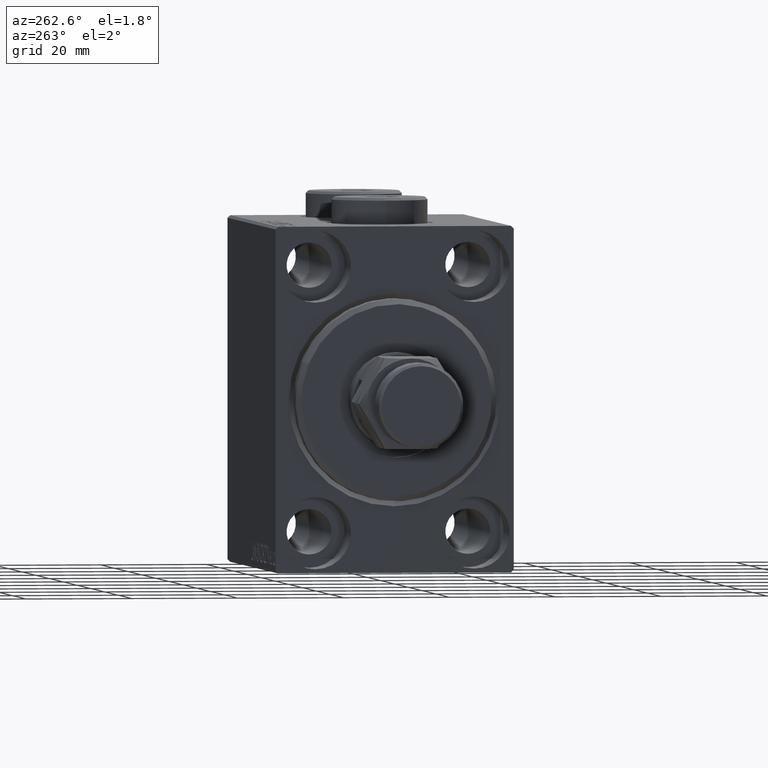
[diagram: clean part render]
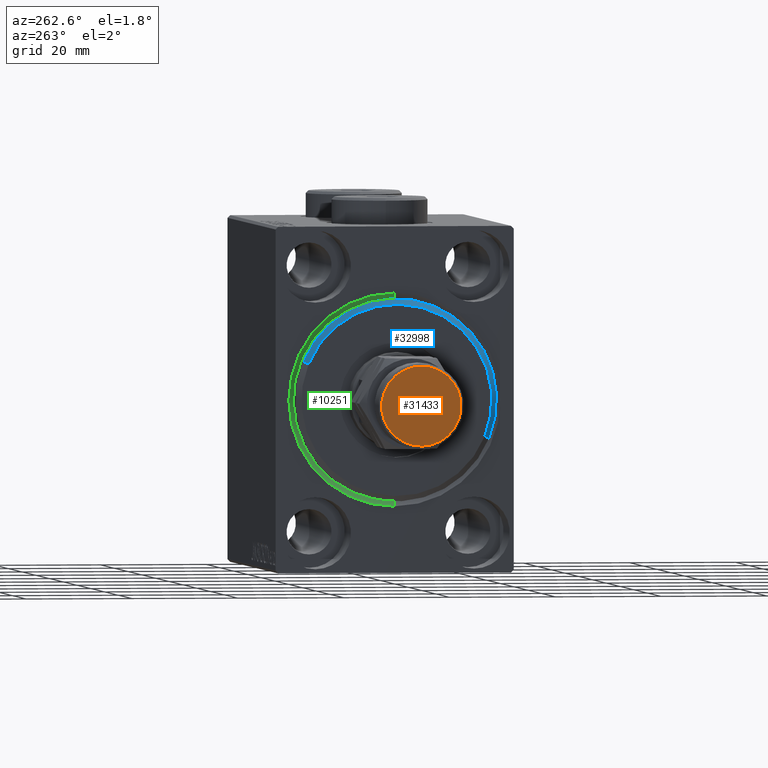
[diagram: same view with three faces highlighted in distinct colors, each labeled with its STEP entity id]
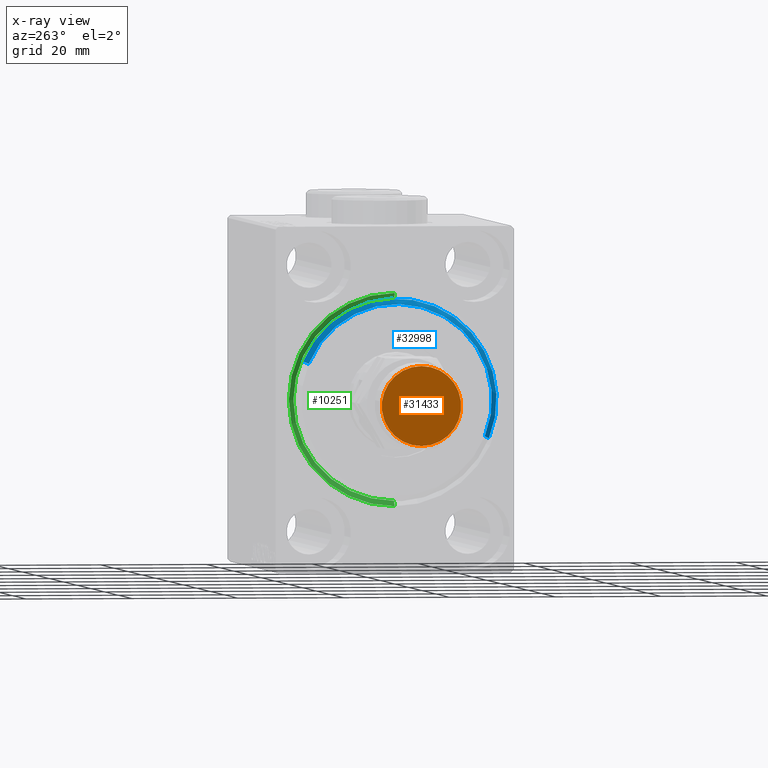
[diagram: x-ray of the same camera — body ghosted, the three highlighted faces saturated]
A machine part, auxiliary view with three faces highlighted in distinct colors.
The next image is the same camera in x-ray (body ghosted, the three faces saturated) — at least one of them is partly hidden behind the body in this view.
Their STEP definitions:

[orange] entity #31433 — the highlighted planar face has unit normal (-1, 0, 0).
#1427 = FACE_OUTER_BOUND ( 'NONE', #40036, .T. ) ;
#3034 = DIRECTION ( 'NONE',  ( 0.000000000000000000, 0.000000000000000000, 1.000000000000000000 ) ) ;
#3416 = ORIENTED_EDGE ( 'NONE', *, *, #18164, .T. ) ;
#3984 = CARTESIAN_POINT ( 'NONE',  ( 7.500000000000000000, 9.491012693391985815E-16, 28.00000000000000000 ) ) ;
#4014 = CIRCLE ( 'NONE', #7059, 7.500000000000000000 ) ;
#5772 = EDGE_CURVE ( 'NONE', #34892, #43470, #32545, .T. ) ;
#7059 = AXIS2_PLACEMENT_3D ( 'NONE', #11611, #44065, #24137 ) ;
#8395 = CARTESIAN_POINT ( 'NONE',  ( -7.500000000000000000, 0.000000000000000000, 28.00000000000000000 ) ) ;
#11611 = CARTESIAN_POINT ( 'NONE',  ( 0.000000000000000000, 0.000000000000000000, 28.00000000000000000 ) ) ;
#18164 = EDGE_CURVE ( 'NONE', #43470, #34892, #4014, .T. ) ;
#18190 = CARTESIAN_POINT ( 'NONE',  ( 0.000000000000000000, 0.000000000000000000, 28.00000000000000000 ) ) ;
#24137 = DIRECTION ( 'NONE',  ( 1.000000000000000000, 0.000000000000000000, 0.000000000000000000 ) ) ;
#28852 = DIRECTION ( 'NONE',  ( 1.000000000000000000, 0.000000000000000000, 0.000000000000000000 ) ) ;
#29057 = ORIENTED_EDGE ( 'NONE', *, *, #5772, .T. ) ;
#30240 = AXIS2_PLACEMENT_3D ( 'NONE', #18190, #3034, #28852 ) ;
#31433 = ADVANCED_FACE ( 'NONE', ( #1427 ), #37678, .T. ) ;
#32545 = CIRCLE ( 'NONE', #30240, 7.500000000000000000 ) ;
#33896 = CARTESIAN_POINT ( 'NONE',  ( 0.000000000000000000, 0.000000000000000000, 28.00000000000000000 ) ) ;
#34558 = AXIS2_PLACEMENT_3D ( 'NONE', #33896, #37903, #34587 ) ;
#34587 = DIRECTION ( 'NONE',  ( 1.000000000000000000, 0.000000000000000000, -0.000000000000000000 ) ) ;
#34892 = VERTEX_POINT ( 'NONE', #8395 ) ;
#37678 = PLANE ( 'NONE',  #34558 ) ;
#37903 = DIRECTION ( 'NONE',  ( 0.000000000000000000, 0.000000000000000000, 1.000000000000000000 ) ) ;
#40036 = EDGE_LOOP ( 'NONE', ( #29057, #3416 ) ) ;
#43470 = VERTEX_POINT ( 'NONE', #3984 ) ;
#44065 = DIRECTION ( 'NONE',  ( 0.000000000000000000, 0.000000000000000000, 1.000000000000000000 ) ) ;

[blue] entity #32998 — the highlighted conical surface has half-angle 45 deg.
#628 = LINE ( 'NONE', #25981, #39481 ) ;
#1464 = CIRCLE ( 'NONE', #34007, 17.99999999999999645 ) ;
#1726 = EDGE_LOOP ( 'NONE', ( #16423, #27873, #13181, #31493 ) ) ;
#3560 = EDGE_CURVE ( 'NONE', #18769, #9511, #1464, .T. ) ;
#3833 = CARTESIAN_POINT ( 'NONE',  ( 3.000000000000000000, 0.000000000000000000, 0.000000000000000000 ) ) ;
#4157 = CARTESIAN_POINT ( 'NONE',  ( 3.000000000000000000, 2.265596578422603002E-15, -17.99999999999999645 ) ) ;
#4874 = DIRECTION ( 'NONE',  ( -0.7071067811865487940, 0.000000000000000000, 0.7071067811865463515 ) ) ;
#5078 = EDGE_CURVE ( 'NONE', #18086, #35740, #35549, .T. ) ;
#6585 = LINE ( 'NONE', #24345, #21733 ) ;
#7521 = CARTESIAN_POINT ( 'NONE',  ( 3.000000000000000000, 0.000000000000000000, 0.000000000000000000 ) ) ;
#9511 = VERTEX_POINT ( 'NONE', #4157 ) ;
#10478 = DIRECTION ( 'NONE',  ( -1.000000000000000000, 0.000000000000000000, 0.000000000000000000 ) ) ;
#11191 = FACE_OUTER_BOUND ( 'NONE', #1726, .T. ) ;
#13181 = ORIENTED_EDGE ( 'NONE', *, *, #15083, .T. ) ;
#14878 = DIRECTION ( 'NONE',  ( 1.000000000000000000, -0.000000000000000000, 0.000000000000000000 ) ) ;
#15083 = EDGE_CURVE ( 'NONE', #18769, #35740, #628, .T. ) ;
#15130 = AXIS2_PLACEMENT_3D ( 'NONE', #18824, #33288, #27123 ) ;
#16423 = ORIENTED_EDGE ( 'NONE', *, *, #33210, .F. ) ;
#18086 = VERTEX_POINT ( 'NONE', #43835 ) ;
#18287 = DIRECTION ( 'NONE',  ( 0.000000000000000000, 0.000000000000000000, 1.000000000000000000 ) ) ;
#18769 = VERTEX_POINT ( 'NONE', #34254 ) ;
#18824 = CARTESIAN_POINT ( 'NONE',  ( 1.999999999999992228, 0.000000000000000000, 0.000000000000000000 ) ) ;
#20738 = CARTESIAN_POINT ( 'NONE',  ( 1.999999999999992228, 0.000000000000000000, 19.00000000000000000 ) ) ;
#21024 = DIRECTION ( 'NONE',  ( -0.7071067811865487940, 8.659560562354918067E-17, -0.7071067811865463515 ) ) ;
#21733 = VECTOR ( 'NONE', #21024, 1000.000000000000000 ) ;
#24345 = CARTESIAN_POINT ( 'NONE',  ( 3.000000000000000000, 2.204364238465235033E-15, -17.99999999999999645 ) ) ;
#25981 = CARTESIAN_POINT ( 'NONE',  ( 3.000000000000000000, 0.000000000000000000, 17.99999999999999645 ) ) ;
#27123 = DIRECTION ( 'NONE',  ( 0.000000000000000000, 0.000000000000000000, -1.000000000000000000 ) ) ;
#27873 = ORIENTED_EDGE ( 'NONE', *, *, #3560, .F. ) ;
#31493 = ORIENTED_EDGE ( 'NONE', *, *, #5078, .F. ) ;
#32998 = ADVANCED_FACE ( 'NONE', ( #11191 ), #41421, .T. ) ;
#33210 = EDGE_CURVE ( 'NONE', #9511, #18086, #6585, .T. ) ;
#33288 = DIRECTION ( 'NONE',  ( -1.000000000000000000, 0.000000000000000000, 0.000000000000000000 ) ) ;
#34007 = AXIS2_PLACEMENT_3D ( 'NONE', #7521, #14878, #43766 ) ;
#34254 = CARTESIAN_POINT ( 'NONE',  ( 3.000000000000000000, 0.000000000000000000, 17.99999999999999645 ) ) ;
#35549 = CIRCLE ( 'NONE', #15130, 19.00000000000000000 ) ;
#35740 = VERTEX_POINT ( 'NONE', #20738 ) ;
#39481 = VECTOR ( 'NONE', #4874, 1000.000000000000000 ) ;
#41421 = CONICAL_SURFACE ( 'NONE', #42898, 17.99999999999999645, 0.7853981633974466137 ) ;
#42898 = AXIS2_PLACEMENT_3D ( 'NONE', #3833, #10478, #18287 ) ;
#43766 = DIRECTION ( 'NONE',  ( 0.000000000000000000, 0.000000000000000000, -1.000000000000000000 ) ) ;
#43835 = CARTESIAN_POINT ( 'NONE',  ( 1.999999999999992228, 2.326828918379970970E-15, -19.00000000000000000 ) ) ;

[green] entity #10251 — the highlighted conical surface has half-angle 45 deg.
#3250 = DIRECTION ( 'NONE',  ( -0.7071067811865463515, 8.659560562354948882E-17, -0.7071067811865487940 ) ) ;
#3490 = LINE ( 'NONE', #36192, #6476 ) ;
#3803 = VERTEX_POINT ( 'NONE', #21438 ) ;
#6199 = DIRECTION ( 'NONE',  ( -0.7071067811865463515, 0.000000000000000000, 0.7071067811865487940 ) ) ;
#6293 = EDGE_CURVE ( 'NONE', #23946, #3803, #9526, .T. ) ;
#6476 = VECTOR ( 'NONE', #3250, 1000.000000000000000 ) ;
#8720 = CIRCLE ( 'NONE', #35202, 19.00000000000000000 ) ;
#9526 = LINE ( 'NONE', #23971, #22735 ) ;
#9781 = CARTESIAN_POINT ( 'NONE',  ( 1.000000000000000888, 0.000000000000000000, 0.000000000000000000 ) ) ;
#10251 = ADVANCED_FACE ( 'NONE', ( #19019 ), #15161, .F. ) ;
#10349 = DIRECTION ( 'NONE',  ( 1.000000000000000000, 0.000000000000000000, 0.000000000000000000 ) ) ;
#12071 = CARTESIAN_POINT ( 'NONE',  ( 1.000000000000000888, 2.326828918379970970E-15, -19.00000000000000000 ) ) ;
#15161 = CONICAL_SURFACE ( 'NONE', #42471, 19.00000000000000000, 0.7853981633974500554 ) ;
#16017 = CARTESIAN_POINT ( 'NONE',  ( 0.000000000000000000, 2.449293598294706907E-15, -20.00000000000000355 ) ) ;
#17497 = ORIENTED_EDGE ( 'NONE', *, *, #22653, .F. ) ;
#18560 = CARTESIAN_POINT ( 'NONE',  ( 1.000000000000000888, 0.000000000000000000, 0.000000000000000000 ) ) ;
#18787 = VERTEX_POINT ( 'NONE', #16017 ) ;
#19019 = FACE_OUTER_BOUND ( 'NONE', #24352, .T. ) ;
#20895 = DIRECTION ( 'NONE',  ( 0.000000000000000000, 0.000000000000000000, -1.000000000000000000 ) ) ;
#21438 = CARTESIAN_POINT ( 'NONE',  ( 0.000000000000000000, 0.000000000000000000, 20.00000000000000355 ) ) ;
#21885 = DIRECTION ( 'NONE',  ( 0.000000000000000000, 0.000000000000000000, 1.000000000000000000 ) ) ;
#22653 = EDGE_CURVE ( 'NONE', #23946, #34455, #8720, .T. ) ;
#22735 = VECTOR ( 'NONE', #6199, 1000.000000000000000 ) ;
#23018 = EDGE_CURVE ( 'NONE', #18787, #3803, #28362, .T. ) ;
#23946 = VERTEX_POINT ( 'NONE', #36007 ) ;
#23971 = CARTESIAN_POINT ( 'NONE',  ( 1.000000000000000888, 0.000000000000000000, 19.00000000000000000 ) ) ;
#24352 = EDGE_LOOP ( 'NONE', ( #34669, #17497, #38669, #39219 ) ) ;
#24450 = DIRECTION ( 'NONE',  ( -1.000000000000000000, 0.000000000000000000, 0.000000000000000000 ) ) ;
#25036 = CARTESIAN_POINT ( 'NONE',  ( 0.000000000000000000, 0.000000000000000000, 0.000000000000000000 ) ) ;
#28362 = CIRCLE ( 'NONE', #34427, 20.00000000000000355 ) ;
#34427 = AXIS2_PLACEMENT_3D ( 'NONE', #25036, #10349, #46587 ) ;
#34455 = VERTEX_POINT ( 'NONE', #12071 ) ;
#34669 = ORIENTED_EDGE ( 'NONE', *, *, #39138, .F. ) ;
#35202 = AXIS2_PLACEMENT_3D ( 'NONE', #9781, #24450, #20895 ) ;
#36007 = CARTESIAN_POINT ( 'NONE',  ( 1.000000000000000888, 0.000000000000000000, 19.00000000000000000 ) ) ;
#36192 = CARTESIAN_POINT ( 'NONE',  ( 1.000000000000000888, 2.326828918379970970E-15, -19.00000000000000000 ) ) ;
#38669 = ORIENTED_EDGE ( 'NONE', *, *, #6293, .T. ) ;
#39138 = EDGE_CURVE ( 'NONE', #34455, #18787, #3490, .T. ) ;
#39219 = ORIENTED_EDGE ( 'NONE', *, *, #23018, .F. ) ;
#39891 = DIRECTION ( 'NONE',  ( -1.000000000000000000, 0.000000000000000000, 0.000000000000000000 ) ) ;
#42471 = AXIS2_PLACEMENT_3D ( 'NONE', #18560, #39891, #21885 ) ;
#46587 = DIRECTION ( 'NONE',  ( 0.000000000000000000, 0.000000000000000000, -1.000000000000000000 ) ) ;